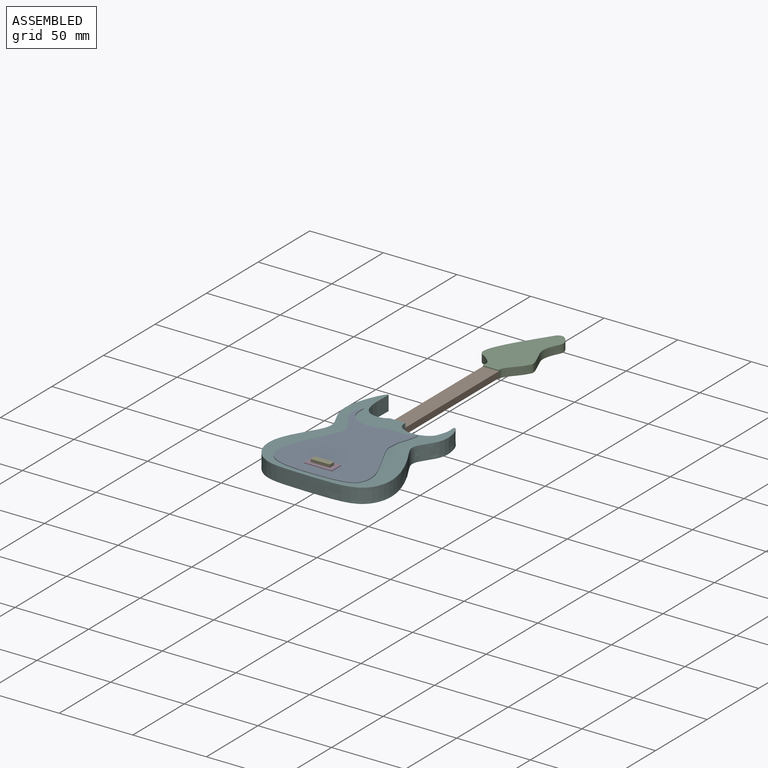
[diagram: assembled view]
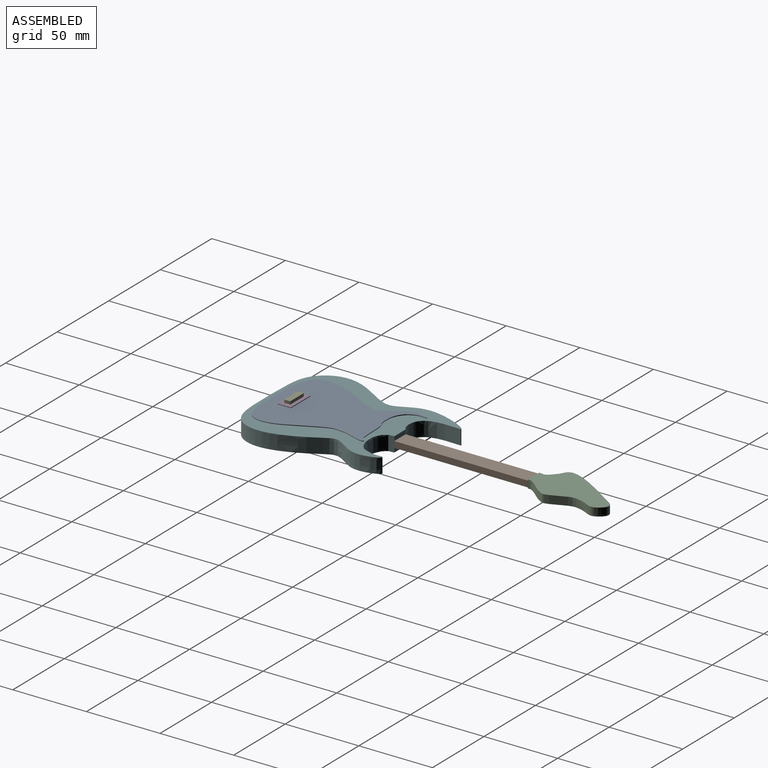
[diagram: assembled view, second angle]
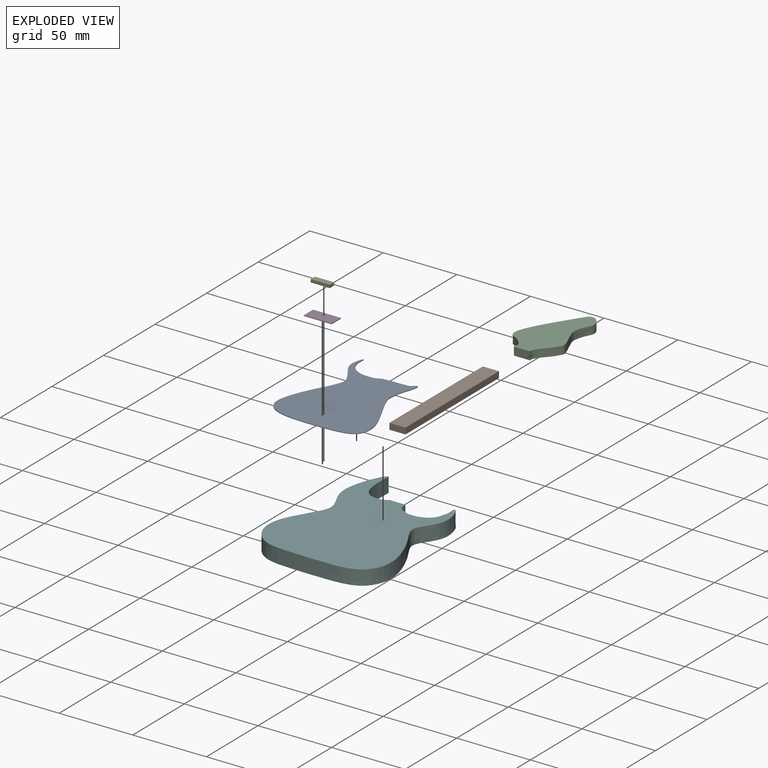
[diagram: exploded view]
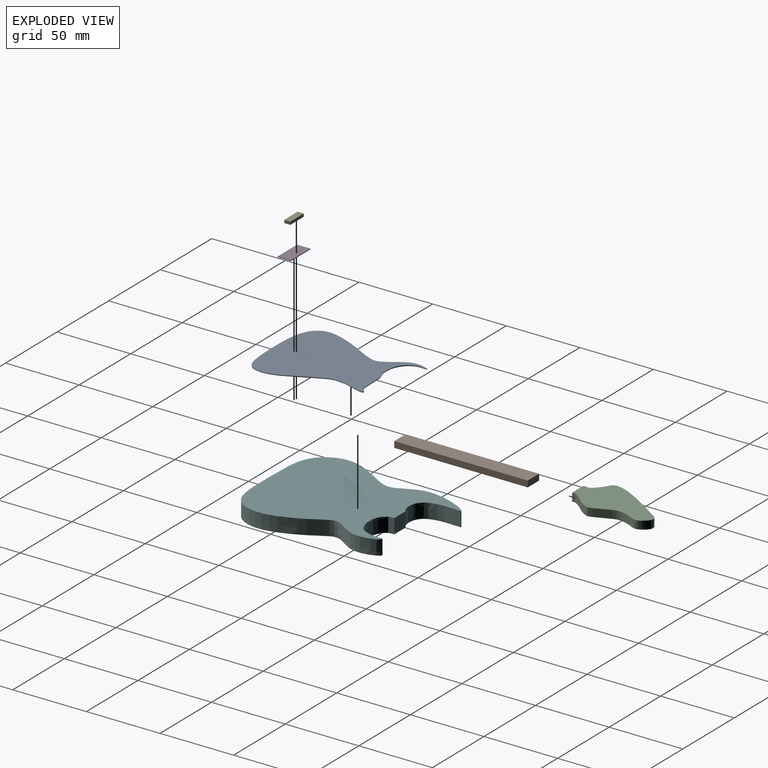
[diagram: exploded view, second angle]
ASSEMBLY  parts=6 mates=4
PART A: 3 faces, bbox 65.3x87.3x0.5 mm
  f0: extruded ~86.52x63.78mm, area 136.6mm2, adj f1,f2
  f1: plane 87.25x65.28mm, normal (0,0,1), area 3487.2mm2, adj f0
  f2: plane 87.25x65.28mm, normal (0,0,-1), area 3487.2mm2, adj f0
PART B: 6 faces, bbox 11x90.7x4.2 mm
  f0: plane 10.98x4.2mm, normal (0,-1,0), area 46.1mm2, adj f1,f3,f4,f5
  f1: plane 90.69x4.2mm, normal (1,0,0), area 380.9mm2, adj f0,f2,f4,f5
  f2: plane 10.98x4.2mm, normal (0,1,0), area 46.1mm2, adj f1,f3,f4,f5
  f3: plane 90.69x4.2mm, normal (-1,0,0), area 380.9mm2, adj f0,f2,f4,f5
  f4: plane 90.69x10.98mm, normal (0,0,1), area 996mm2, adj f0,f1,f2,f3
  f5: plane 90.69x10.98mm, normal (0,0,-1), area 996mm2, adj f0,f1,f2,f3
PART C: 6 faces, bbox 34.4x57.3x5.5 mm
  f0: extruded ~51.62x21.6mm, area 342.1mm2, adj f1,f3,f4,f5
  f1: extruded ~5.5x4.22mm, area 23.5mm2, adj f0,f2,f4,f5
  f2: plane 10.91x5.5mm, normal (0,-1,0), area 60mm2, adj f1,f3,f4,f5
  f3: extruded ~57x10.87mm, area 375.3mm2, adj f0,f2,f4,f5
  f4: plane 57.29x34.4mm, normal (0,0,-1), area 1112.2mm2, adj f0,f1,f2,f3
  f5: plane 57.29x34.4mm, normal (0,0,1), area 1112.2mm2, adj f0,f1,f2,f3
PART D: 6 faces, bbox 19x9x0.5 mm
  f0: plane 19x0.5mm, normal (0,-1,0), area 9.5mm2, adj f1,f3,f4,f5
  f1: plane 9x0.5mm, normal (1,0,0), area 4.5mm2, adj f0,f2,f4,f5
  f2: plane 19x0.5mm, normal (0,1,0), area 9.5mm2, adj f1,f3,f4,f5
  f3: plane 9x0.5mm, normal (-1,0,0), area 4.5mm2, adj f0,f2,f4,f5
  f4: plane 19x9mm, normal (0,0,1), area 171mm2, adj f0,f1,f2,f3
  f5: plane 19x9mm, normal (0,0,-1), area 171mm2, adj f0,f1,f2,f3
PART E: 18 faces, bbox 13.1x4.1x2 mm
  f0: plane 4.15x2mm, normal (1,0,0), area 8.3mm2, adj f1,f3,f4,f5
  f1: plane 13.08x2mm, normal (0,1,0), area 25mm2, adj f0,f2,f4,f5,f6,f8,f10,f12
  f2: plane 4.15x2mm, normal (-1,0,0), area 8.3mm2, adj f1,f3,f4,f5
  f3: plane 13.08x2mm, normal (0,-1,0), area 26.2mm2, adj f0,f2,f4,f5
  f4: plane 13.08x4.15mm, normal (0,0,1), area 54.3mm2, adj f0,f1,f2,f3
  f5: plane 13.08x4.15mm, normal (0,0,-1), area 54.3mm2, adj f0,f1,f2,f3
  f6: cylinder r=0.25mm len=1mm, axis (0,1,0), area 1.6mm2, adj f1,f7
  f7: plane 0.5x0.5mm, normal (0,1,0), area 0.2mm2, adj f6
  f8: cylinder r=0.25mm len=1mm, axis (0,1,0), area 1.6mm2, adj f1,f9
  f9: plane 0.5x0.5mm, normal (0,1,0), area 0.2mm2, adj f8
  f10: cylinder r=0.25mm len=1mm, axis (0,1,0), area 1.6mm2, adj f1,f11
  f11: plane 0.5x0.5mm, normal (0,1,0), area 0.2mm2, adj f10
  f12: cylinder r=0.25mm len=1mm, axis (0,1,0), area 1.6mm2, adj f1,f13
  f13: plane 0.5x0.5mm, normal (0,1,0), area 0.2mm2, adj f12
  f14: cylinder r=0.25mm len=1mm, axis (0,1,0), area 1.6mm2, adj f1,f15
  f15: plane 0.5x0.5mm, normal (0,1,0), area 0.2mm2, adj f14
  f16: cylinder r=0.25mm len=1mm, axis (0,1,0), area 1.6mm2, adj f1,f17
  f17: plane 0.5x0.5mm, normal (0,1,0), area 0.2mm2, adj f16
PART F: 10 faces, bbox 85.7x114.6x10 mm
  f0: extruded ~26.87x10mm, area 307.2mm2, adj f1,f7,f8,f9
  f1: extruded ~112.91x42.48mm, area 1523.8mm2, adj f0,f2,f8,f9
  f2: extruded ~98.34x42.15mm, area 1528.1mm2, adj f1,f3,f8,f9
  f3: extruded ~10x0.04mm, area 0.4mm2, adj f2,f4,f8,f9
  f4: extruded ~22.86x10mm, area 261.7mm2, adj f3,f5,f8,f9
  f5: extruded ~10x3.87mm, area 38.9mm2, adj f4,f6,f8,f9
  f6: plane 10.82x10mm, normal (0,1,0), area 108.2mm2, adj f5,f7,f8,f9
  f7: extruded ~10x9.52mm, area 100.9mm2, adj f0,f6,f8,f9
  f8: plane 114.57x85.73mm, normal (0,0,1), area 6167.4mm2, adj f0,f1,f2,f3,f4,f5,f6,f7
  f9: plane 114.57x85.73mm, normal (0,0,-1), area 6167.4mm2, adj f0,f1,f2,f3,f4,f5,f6,f7
PLACE A rot(axis=(0,1,0),180deg) t=(-29.95,-11.58,21.27)mm
PLACE B t=(-37.75,0.64,-2.33)mm
PLACE C t=(-37.71,0.63,-1.48)mm
PLACE D t=(-38.53,-10.74,1.27)mm
PLACE E t=(-38.53,-12.17,1.27)mm
PLACE F t=(-37.88,-6.96,0.77)mm
MATE fastened A.f1 <-> F.f8  axis (0,0,-1) through (-38.53,-41.01,10.77)mm
MATE fastened E.f5 <-> D.f4  axis (0,0,-1) through (-38.53,-61.01,11.77)mm
MATE fastened B.f0 <-> F.f6  axis (0,-1,0) through (-38.14,11.19,5.77)mm
MATE fastened C.f2 <-> B.f2  axis (0,-1,0) through (-38.14,101.88,5.77)mm
